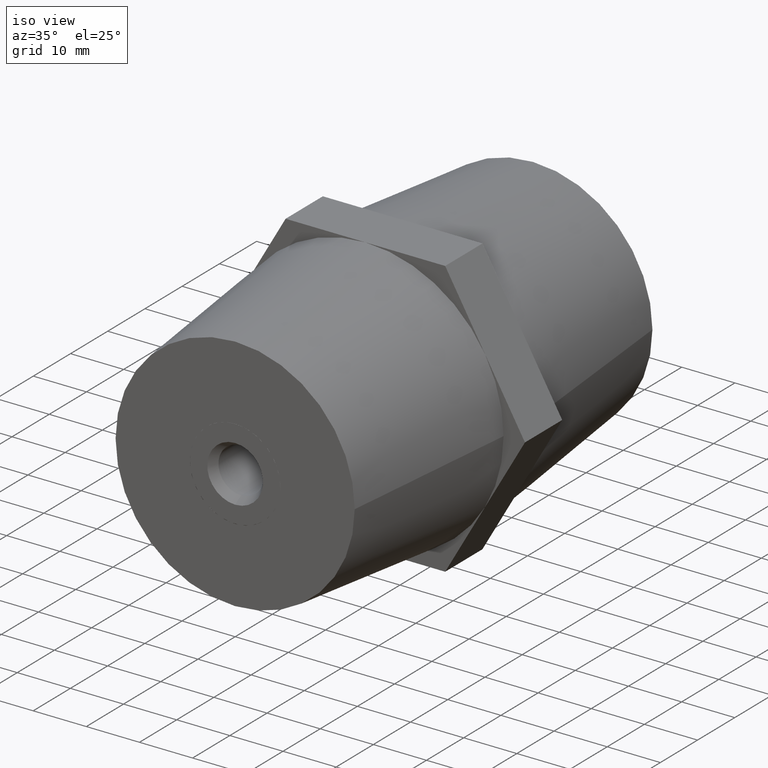
[diagram: clean part render]
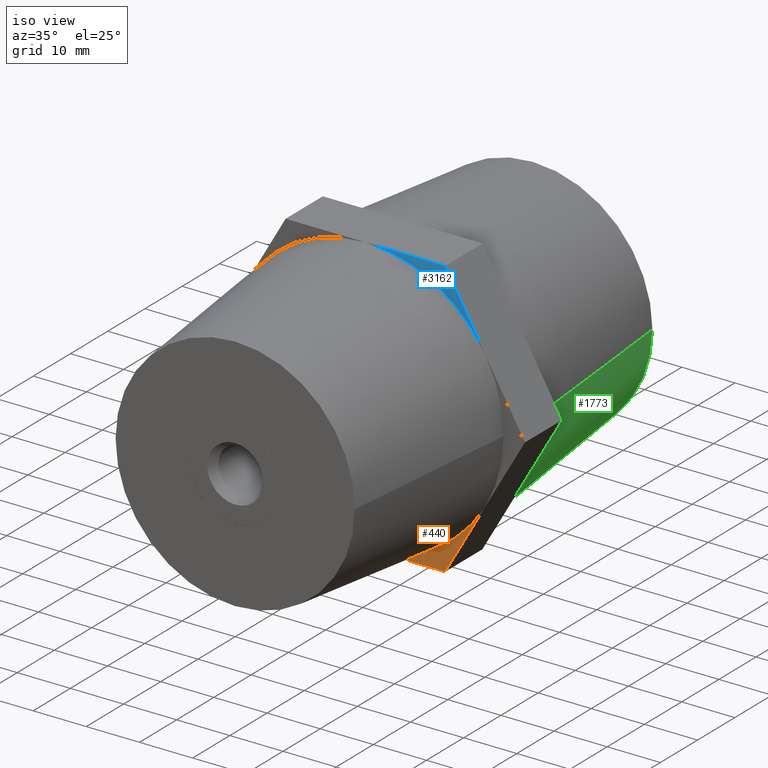
[diagram: same view with three faces highlighted in distinct colors, each labeled with its STEP entity id]
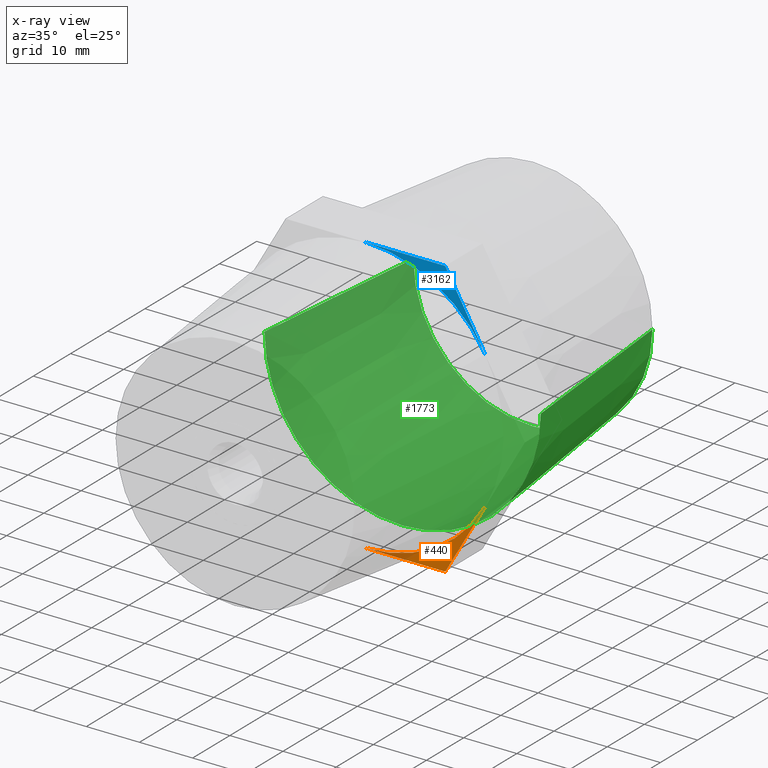
[diagram: x-ray of the same camera — body ghosted, the three highlighted faces saturated]
A machine part, iso view with three faces highlighted in distinct colors.
The next image is the same camera in x-ray (body ghosted, the three faces saturated) — at least one of them is partly hidden behind the body in this view.
Their STEP definitions:

[orange] entity #440 — the highlighted planar face has unit normal (0, 1, 0).
#57 = CARTESIAN_POINT ( 'NONE',  ( 22.51666049839540000, -5.000000000000000000, -13.00000000000000000 ) ) ;
#286 = ORIENTED_EDGE ( 'NONE', *, *, #817, .F. ) ;
#310 = ORIENTED_EDGE ( 'NONE', *, *, #2615, .T. ) ;
#320 = DIRECTION ( 'NONE',  ( -0.4999999999999998900, 0.0000000000000000000, -0.8660254037844387100 ) ) ;
#440 = ADVANCED_FACE ( 'NONE', ( #2412 ), #1141, .F. ) ;
#817 = EDGE_CURVE ( 'NONE', #3498, #2196, #2407, .T. ) ;
#871 = DIRECTION ( 'NONE',  ( 0.0000000000000000000, 1.000000000000000000, 0.0000000000000000000 ) ) ;
#887 = CARTESIAN_POINT ( 'NONE',  ( 5.510910596163089600E-015, -5.000000000000000000, 3.184081677783139900E-016 ) ) ;
#964 = CIRCLE ( 'NONE', #2569, 26.00000000000000000 ) ;
#1141 = PLANE ( 'NONE',  #2219 ) ;
#1265 = VECTOR ( 'NONE', #320, 1000.000000000000000 ) ;
#1274 = CARTESIAN_POINT ( 'NONE',  ( 15.01110699893025000, -5.000000000000000000, -26.00000000000000000 ) ) ;
#1448 = LINE ( 'NONE', #3695, #1265 ) ;
#1734 = CARTESIAN_POINT ( 'NONE',  ( 5.510910596163089600E-015, -5.000000000000000000, -26.00000000000000000 ) ) ;
#2030 = ORIENTED_EDGE ( 'NONE', *, *, #2487, .F. ) ;
#2081 = DIRECTION ( 'NONE',  ( 0.0000000000000000000, 0.0000000000000000000, 1.000000000000000000 ) ) ;
#2146 = CARTESIAN_POINT ( 'NONE',  ( 15.01110699893025000, -5.000000000000000000, -26.00000000000000000 ) ) ;
#2196 = VERTEX_POINT ( 'NONE', #1734 ) ;
#2219 = AXIS2_PLACEMENT_3D ( 'NONE', #2986, #3277, #2081 ) ;
#2407 = LINE ( 'NONE', #1274, #2794 ) ;
#2412 = FACE_OUTER_BOUND ( 'NONE', #2762, .T. ) ;
#2466 = DIRECTION ( 'NONE',  ( 0.0000000000000000000, 0.0000000000000000000, 1.000000000000000000 ) ) ;
#2487 = EDGE_CURVE ( 'NONE', #3600, #3498, #1448, .T. ) ;
#2569 = AXIS2_PLACEMENT_3D ( 'NONE', #887, #871, #2466 ) ;
#2615 = EDGE_CURVE ( 'NONE', #3600, #2196, #964, .T. ) ;
#2762 = EDGE_LOOP ( 'NONE', ( #2030, #310, #286 ) ) ;
#2794 = VECTOR ( 'NONE', #2800, 1000.000000000000000 ) ;
#2800 = DIRECTION ( 'NONE',  ( -1.000000000000000000, 0.0000000000000000000, 0.0000000000000000000 ) ) ;
#2986 = CARTESIAN_POINT ( 'NONE',  ( 0.0000000000000000000, -5.000000000000000000, 0.0000000000000000000 ) ) ;
#3277 = DIRECTION ( 'NONE',  ( 0.0000000000000000000, 1.000000000000000000, 0.0000000000000000000 ) ) ;
#3498 = VERTEX_POINT ( 'NONE', #2146 ) ;
#3600 = VERTEX_POINT ( 'NONE', #57 ) ;
#3695 = CARTESIAN_POINT ( 'NONE',  ( 30.02221399786055000, -5.000000000000000000, -1.386447110356290000E-014 ) ) ;

[blue] entity #3162 — the highlighted planar face has unit normal (0, 1, 0).
#329 = CARTESIAN_POINT ( 'NONE',  ( 22.51666049839544900, -5.000000000000000000, 13.00000000000000000 ) ) ;
#338 = AXIS2_PLACEMENT_3D ( 'NONE', #2534, #367, #3789 ) ;
#367 = DIRECTION ( 'NONE',  ( 0.0000000000000000000, 1.000000000000000000, 0.0000000000000000000 ) ) ;
#371 = VERTEX_POINT ( 'NONE', #1710 ) ;
#396 = LINE ( 'NONE', #3735, #2211 ) ;
#415 = VERTEX_POINT ( 'NONE', #1765 ) ;
#739 = VERTEX_POINT ( 'NONE', #329 ) ;
#825 = EDGE_CURVE ( 'NONE', #415, #739, #3084, .T. ) ;
#899 = PLANE ( 'NONE',  #1875 ) ;
#919 = DIRECTION ( 'NONE',  ( 1.000000000000000000, 0.0000000000000000000, 1.155626614413199800E-016 ) ) ;
#1121 = DIRECTION ( 'NONE',  ( 0.0000000000000000000, 0.0000000000000000000, 1.000000000000000000 ) ) ;
#1208 = EDGE_CURVE ( 'NONE', #371, #739, #2546, .T. ) ;
#1293 = CARTESIAN_POINT ( 'NONE',  ( 15.01110699893025000, -5.000000000000000000, 26.00000000000000000 ) ) ;
#1502 = CARTESIAN_POINT ( 'NONE',  ( 0.0000000000000000000, -5.000000000000000000, 0.0000000000000000000 ) ) ;
#1710 = CARTESIAN_POINT ( 'NONE',  ( 2.506281398688769900E-015, -5.000000000000000000, 26.00000000000000000 ) ) ;
#1765 = CARTESIAN_POINT ( 'NONE',  ( 15.01110699893025000, -5.000000000000000000, 26.00000000000000000 ) ) ;
#1787 = ORIENTED_EDGE ( 'NONE', *, *, #1208, .T. ) ;
#1820 = EDGE_CURVE ( 'NONE', #371, #415, #396, .T. ) ;
#1875 = AXIS2_PLACEMENT_3D ( 'NONE', #1502, #2630, #1121 ) ;
#2079 = VECTOR ( 'NONE', #3410, 1000.000000000000000 ) ;
#2211 = VECTOR ( 'NONE', #919, 1000.000000000000000 ) ;
#2283 = EDGE_LOOP ( 'NONE', ( #2947, #1787, #2529 ) ) ;
#2529 = ORIENTED_EDGE ( 'NONE', *, *, #825, .F. ) ;
#2534 = CARTESIAN_POINT ( 'NONE',  ( 5.510910596163089600E-015, -5.000000000000000000, 3.184081677783139900E-016 ) ) ;
#2546 = CIRCLE ( 'NONE', #338, 26.00000000000000000 ) ;
#2630 = DIRECTION ( 'NONE',  ( 0.0000000000000000000, 1.000000000000000000, 0.0000000000000000000 ) ) ;
#2687 = FACE_OUTER_BOUND ( 'NONE', #2283, .T. ) ;
#2947 = ORIENTED_EDGE ( 'NONE', *, *, #1820, .F. ) ;
#3084 = LINE ( 'NONE', #1293, #2079 ) ;
#3162 = ADVANCED_FACE ( 'NONE', ( #2687 ), #899, .F. ) ;
#3410 = DIRECTION ( 'NONE',  ( 0.4999999999999998900, 0.0000000000000000000, -0.8660254037844387100 ) ) ;
#3735 = CARTESIAN_POINT ( 'NONE',  ( -15.01110699893030000, -5.000000000000000000, 26.00000000000000000 ) ) ;
#3789 = DIRECTION ( 'NONE',  ( 0.0000000000000000000, 0.0000000000000000000, 1.000000000000000000 ) ) ;

[green] entity #1773 — the highlighted conical surface has half-angle 5.711 deg.
#16 = DIRECTION ( 'NONE',  ( -1.224646799147352000E-016, 1.000000000000000000, 0.0000000000000000000 ) ) ;
#21 = ORIENTED_EDGE ( 'NONE', *, *, #3362, .T. ) ;
#141 = VERTEX_POINT ( 'NONE', #2828 ) ;
#147 = CARTESIAN_POINT ( 'NONE',  ( -22.51666049839540000, 5.000000000000000000, -13.00000000000000000 ) ) ;
#178 = EDGE_CURVE ( 'NONE', #1396, #3190, #935, .T. ) ;
#245 = DIRECTION ( 'NONE',  ( -1.000000000000000000, -1.334402673828313100E-016, 0.0000000000000000000 ) ) ;
#397 = EDGE_LOOP ( 'NONE', ( #2849, #3185, #505, #3470, #21, #2268, #1283 ) ) ;
#447 = DIRECTION ( 'NONE',  ( 0.09950371902099942900, -0.9950371902099890400, 0.0000000000000000000 ) ) ;
#481 = DIRECTION ( 'NONE',  ( -1.224646799147352000E-016, 1.000000000000000000, 0.0000000000000000000 ) ) ;
#505 = ORIENTED_EDGE ( 'NONE', *, *, #1538, .T. ) ;
#573 = AXIS2_PLACEMENT_3D ( 'NONE', #3580, #481, #786 ) ;
#585 = LINE ( 'NONE', #2277, #681 ) ;
#618 = AXIS2_PLACEMENT_3D ( 'NONE', #3266, #3575, #1742 ) ;
#681 = VECTOR ( 'NONE', #447, 1000.000000000000200 ) ;
#750 = DIRECTION ( 'NONE',  ( -1.224646799147352000E-016, 1.000000000000000000, 0.0000000000000000000 ) ) ;
#773 = CIRCLE ( 'NONE', #1263, 26.00000000000000000 ) ;
#786 = DIRECTION ( 'NONE',  ( -1.000000000000000000, 0.0000000000000000000, 0.0000000000000000000 ) ) ;
#935 = CIRCLE ( 'NONE', #1253, 26.00000000000000000 ) ;
#1074 = CARTESIAN_POINT ( 'NONE',  ( -26.00000000000001100, 5.000000000000000000, 3.184081677783120200E-015 ) ) ;
#1146 = CARTESIAN_POINT ( 'NONE',  ( -22.50000000000000000, 40.00000000000000000, 2.969768487932332100E-015 ) ) ;
#1252 = CARTESIAN_POINT ( 'NONE',  ( -22.50000000000000000, 40.00000000000000000, 2.755455298081544800E-015 ) ) ;
#1253 = AXIS2_PLACEMENT_3D ( 'NONE', #2841, #750, #2869 ) ;
#1263 = AXIS2_PLACEMENT_3D ( 'NONE', #3931, #2077, #245 ) ;
#1283 = ORIENTED_EDGE ( 'NONE', *, *, #178, .T. ) ;
#1390 = CARTESIAN_POINT ( 'NONE',  ( 26.00000000000002100, 5.000000000000000000, 0.0000000000000000000 ) ) ;
#1396 = VERTEX_POINT ( 'NONE', #147 ) ;
#1538 = EDGE_CURVE ( 'NONE', #141, #2920, #585, .T. ) ;
#1629 = LINE ( 'NONE', #1252, #1784 ) ;
#1742 = DIRECTION ( 'NONE',  ( 1.000000000000000000, 0.0000000000000000000, 0.0000000000000000000 ) ) ;
#1773 = ADVANCED_FACE ( 'NONE', ( #2122 ), #2831, .T. ) ;
#1784 = VECTOR ( 'NONE', #2179, 1000.000000000000200 ) ;
#1810 = VERTEX_POINT ( 'NONE', #2152 ) ;
#1850 = CARTESIAN_POINT ( 'NONE',  ( 4.286263797015734900E-015, 5.000000000000000000, 0.0000000000000000000 ) ) ;
#1886 = VERTEX_POINT ( 'NONE', #3197 ) ;
#1906 = AXIS2_PLACEMENT_3D ( 'NONE', #1850, #16, #2156 ) ;
#2077 = DIRECTION ( 'NONE',  ( -1.224646799147352000E-016, 1.000000000000000000, 0.0000000000000000000 ) ) ;
#2122 = FACE_OUTER_BOUND ( 'NONE', #397, .T. ) ;
#2137 = CIRCLE ( 'NONE', #573, 22.50000000000000000 ) ;
#2152 = CARTESIAN_POINT ( 'NONE',  ( 22.51666049839540000, 5.000000000000000000, -13.00000000000000000 ) ) ;
#2156 = DIRECTION ( 'NONE',  ( -1.000000000000000000, -1.334402673828313100E-016, 0.0000000000000000000 ) ) ;
#2179 = DIRECTION ( 'NONE',  ( -0.09950371902099919300, -0.9950371902099890400, 1.218569110023244100E-017 ) ) ;
#2245 = EDGE_CURVE ( 'NONE', #1886, #1396, #773, .T. ) ;
#2268 = ORIENTED_EDGE ( 'NONE', *, *, #2245, .T. ) ;
#2277 = CARTESIAN_POINT ( 'NONE',  ( 22.50000000000000000, 40.00000000000000000, 0.0000000000000000000 ) ) ;
#2697 = DIRECTION ( 'NONE',  ( -1.000000000000000000, -1.334402673828313100E-016, 0.0000000000000000000 ) ) ;
#2790 = EDGE_CURVE ( 'NONE', #3048, #3190, #1629, .T. ) ;
#2828 = CARTESIAN_POINT ( 'NONE',  ( 22.50000000000000000, 40.00000000000000000, 0.0000000000000000000 ) ) ;
#2831 = CONICAL_SURFACE ( 'NONE', #618, 22.50000000000000000, 0.09966865249116244100 ) ;
#2841 = CARTESIAN_POINT ( 'NONE',  ( 4.286263797015734900E-015, 5.000000000000000000, 0.0000000000000000000 ) ) ;
#2849 = ORIENTED_EDGE ( 'NONE', *, *, #2790, .F. ) ;
#2869 = DIRECTION ( 'NONE',  ( -1.000000000000000000, -1.334402673828313100E-016, 0.0000000000000000000 ) ) ;
#2920 = VERTEX_POINT ( 'NONE', #1390 ) ;
#3048 = VERTEX_POINT ( 'NONE', #1146 ) ;
#3185 = ORIENTED_EDGE ( 'NONE', *, *, #3794, .F. ) ;
#3190 = VERTEX_POINT ( 'NONE', #1074 ) ;
#3197 = CARTESIAN_POINT ( 'NONE',  ( -3.374459510989179900E-031, 5.000000000000000000, -26.00000000000000000 ) ) ;
#3266 = CARTESIAN_POINT ( 'NONE',  ( -3.374459510989179900E-031, 40.00000000000000000, 0.0000000000000000000 ) ) ;
#3332 = CIRCLE ( 'NONE', #1906, 26.00000000000000000 ) ;
#3362 = EDGE_CURVE ( 'NONE', #1810, #1886, #3798, .T. ) ;
#3440 = AXIS2_PLACEMENT_3D ( 'NONE', #3964, #3933, #2697 ) ;
#3470 = ORIENTED_EDGE ( 'NONE', *, *, #3928, .T. ) ;
#3575 = DIRECTION ( 'NONE',  ( 1.224646799147352000E-016, -1.000000000000000000, 0.0000000000000000000 ) ) ;
#3580 = CARTESIAN_POINT ( 'NONE',  ( -3.374459510989179900E-031, 40.00000000000000000, 0.0000000000000000000 ) ) ;
#3794 = EDGE_CURVE ( 'NONE', #141, #3048, #2137, .T. ) ;
#3798 = CIRCLE ( 'NONE', #3440, 26.00000000000000000 ) ;
#3928 = EDGE_CURVE ( 'NONE', #2920, #1810, #3332, .T. ) ;
#3931 = CARTESIAN_POINT ( 'NONE',  ( 4.286263797015734900E-015, 5.000000000000000000, 0.0000000000000000000 ) ) ;
#3933 = DIRECTION ( 'NONE',  ( -1.224646799147352000E-016, 1.000000000000000000, 0.0000000000000000000 ) ) ;
#3964 = CARTESIAN_POINT ( 'NONE',  ( 4.286263797015734900E-015, 5.000000000000000000, 0.0000000000000000000 ) ) ;